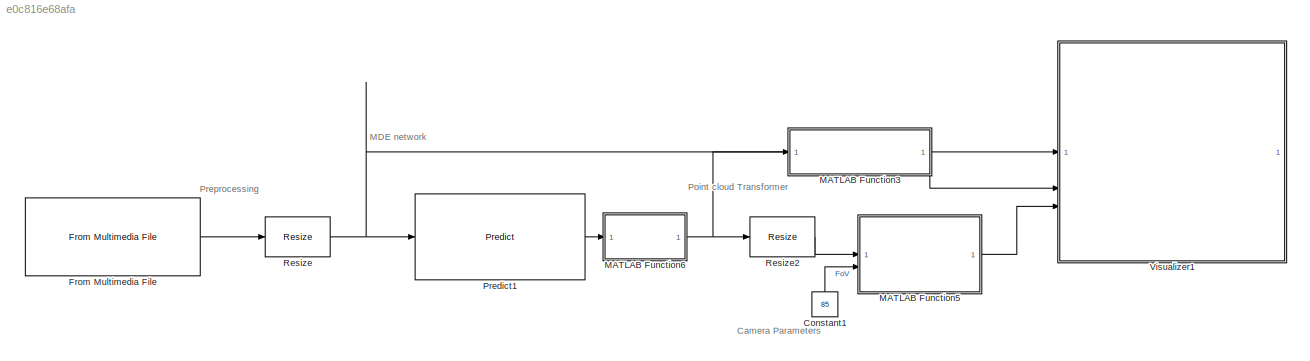
MODEL slx_e0c816e68afa
KIND model
CONFIG AbsTol = auto
CONFIG EnableMultiTasking = off
CONFIG FixedStep = auto
CONFIG MaxStep = auto
CONFIG MinStep = auto
CONFIG RelTol = 1e-3
CONFIG SampleTimeConstraint = Unconstrained
CONFIG SolverName = VariableStepAuto
CONFIG StartTime = 0.0
CONFIG StopTime = 600
BLOCK [Constant] Constant1
  NameLocation = left
  Value = 85
  VectorParams1D = off
BLOCK [Reference] From Multimedia File  REF=dspvision/From Multimedia File
  LibrarySourceBlock = visionsources/From Multimedia File
  SourceBlock = dspvision/From Multimedia File
  SourceType = From Multimedia File
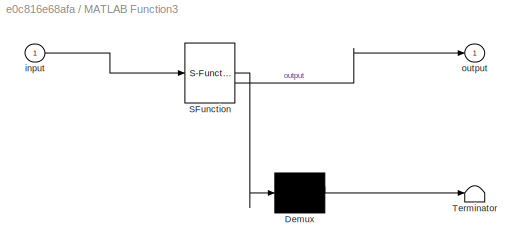
BLOCK [SubSystem] MATLAB Function3
  ErrorFcn = Stateflow.Translate.translate
  PermitHierarchicalResolution = ExplicitOnly
  SFBlockType = MATLAB Function
  TreatAsAtomicUnit = on
BLOCK [Demux] MATLAB Function3/ Demux 
  Outputs = 1
BLOCK [S-Function] MATLAB Function3/ SFunction 
  EnableBusSupport = on
  FunctionName = sf_sfun
  PortCounts = [1 2]
  SFcnIsStateOwnerBlock = off
  SFunctionDeploymentMode = off
  Tag = Stateflow S-Function 5
BLOCK [Terminator] MATLAB Function3/ Terminator 
BLOCK [Inport] MATLAB Function3/input
BLOCK [Outport] MATLAB Function3/output
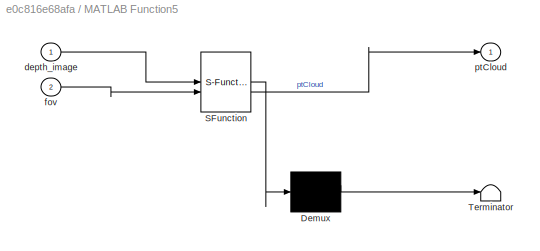
BLOCK [SubSystem] MATLAB Function5
  ErrorFcn = Stateflow.Translate.translate
  PermitHierarchicalResolution = ExplicitOnly
  SFBlockType = MATLAB Function
  TreatAsAtomicUnit = on
BLOCK [Demux] MATLAB Function5/ Demux 
  Outputs = 1
BLOCK [S-Function] MATLAB Function5/ SFunction 
  EnableBusSupport = on
  FunctionName = sf_sfun
  PortCounts = [2 2]
  SFcnIsStateOwnerBlock = off
  SFunctionDeploymentMode = off
  Tag = Stateflow S-Function 6
BLOCK [Terminator] MATLAB Function5/ Terminator 
BLOCK [Inport] MATLAB Function5/depth_image
BLOCK [Inport] MATLAB Function5/fov
  Port = 2
BLOCK [Outport] MATLAB Function5/ptCloud
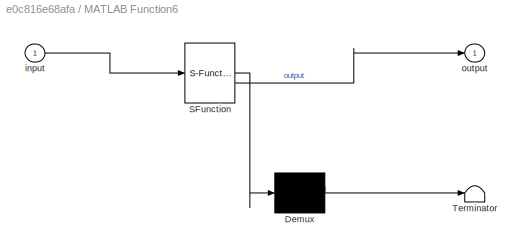
BLOCK [SubSystem] MATLAB Function6
  ErrorFcn = Stateflow.Translate.translate
  PermitHierarchicalResolution = ExplicitOnly
  SFBlockType = MATLAB Function
  TreatAsAtomicUnit = on
BLOCK [Demux] MATLAB Function6/ Demux 
  Outputs = 1
BLOCK [S-Function] MATLAB Function6/ SFunction 
  EnableBusSupport = on
  FunctionName = sf_sfun
  PortCounts = [1 2]
  SFcnIsStateOwnerBlock = off
  SFunctionDeploymentMode = off
  Tag = Stateflow S-Function 7
BLOCK [Terminator] MATLAB Function6/ Terminator 
BLOCK [Inport] MATLAB Function6/input
BLOCK [Outport] MATLAB Function6/output
BLOCK [Reference] Predict1  REF=deeplib/Predict
  SourceBlock = deeplib/Predict
  SourceType = Predict
BLOCK [Reference] Resize  REF=visiongeotforms/Resize
  SourceBlock = visiongeotforms/Resize
  SourceType = Resize
BLOCK [Reference] Resize2  REF=visiongeotforms/Resize
  SourceBlock = visiongeotforms/Resize
  SourceType = Resize
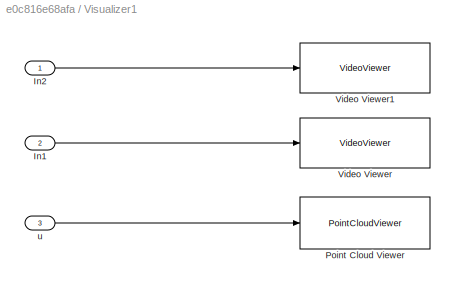
BLOCK [SubSystem] Visualizer1
  NameLocation = top
BLOCK [Inport] Visualizer1/In1
  Port = 2
BLOCK [Inport] Visualizer1/In2
BLOCK [PointCloudViewer] Visualizer1/Point Cloud Viewer
  FigPos = [409.8 859.6 670.4 650.4]
  ScopeSpecificationString = vipscopes.PointCloudViewerScopeCfg('CurrentConfiguration', extmgr.ConfigurationSet(extmgr.Configuration('Core','General UI',true),extmgr.Configuration('Core','Source UI',true),extmgr.Configuration('Sources','WiredSimulink',true),extmgr.Configuration('Visuals','Point Cloud',true)),'Version','2023b','Position',[409.8 3.4 670.4 650.4],'WindowStyle','docked')
BLOCK [VideoViewer] Visualizer1/Video Viewer
  FigPos = [3.4 859.6 400.8 312]
  ScopeSpecificationString = vipscopes.VideoViewerScopeCfg('CurrentConfiguration', extmgr.ConfigurationSet(extmgr.Configuration('Core','General UI',true),extmgr.Configuration('Core','Source UI',true),extmgr.Configuration('Sources','WiredSimulink',true),extmgr.Configuration('Visuals','Video',true),extmgr.Configuration('Tools','Image Navigation Tools',true,'FitToView',true,'Magnification',1.43489583333333),extmgr.Configuration(...<+150ch>
  colormapValue = gray(256)
BLOCK [VideoViewer] Visualizer1/Video Viewer1
  FigPos = [3.4 521.2 400.8 312]
  ScopeSpecificationString = vipscopes.VideoViewerScopeCfg('CurrentConfiguration', extmgr.ConfigurationSet(extmgr.Configuration('Core','General UI',true),extmgr.Configuration('Core','Source UI',true),extmgr.Configuration('Sources','WiredSimulink',true),extmgr.Configuration('Visuals','Video',true),extmgr.Configuration('Tools','Image Navigation Tools',true,'FitToView',true),extmgr.Configuration('Tools','Image Tool',true),extmgr...<+119ch>
  colormapValue = gray(256)
BLOCK [Inport] Visualizer1/u
  Port = 3
ANNOTATION (root): Camera Parameters
ANNOTATION (root): MDE network
ANNOTATION (root): Point cloud Transformer
ANNOTATION (root): Preprocessing
LINE Constant1:1 -> MATLAB Function5:2
LINE From Multimedia File:1 -> Resize:1
LINE MATLAB Function3:1 -> Visualizer1:2
LINE MATLAB Function5:1 -> Visualizer1:3
NET MATLAB Function6:1 -> MATLAB Function3:1, Resize2:1
LINE Predict1:1 -> MATLAB Function6:1
LINE Resize2:1 -> MATLAB Function5:1
NET Resize:1 -> Predict1:1, Visualizer1:1
LINE Visualizer1/In1:1 -> Visualizer1/Video Viewer:1
LINE Visualizer1/In2:1 -> Visualizer1/Video Viewer1:1
LINE Visualizer1/u:1 -> Visualizer1/Point Cloud Viewer:1
note: NET lines group one-source signal fan-out (src -> all destinations, sorted); 1:1 wires keep LINE
CHART MATLAB Function3 states=1 transitions=1
  STATE_LABEL 'eML_blk_kernel()'
  STATE_LABEL 'SCRIPT:\nfunction output = depthColor(input)\n\noutput = zeros([384 384 3]);\n\ncolor_map = jet(256);\nn_max = max(input(:));\nn_min = min(input(:));\n\ndepth_data_colored = ind2rgb(uint8(256*(input - n_min)/(n_max - n_min)), color_map);\noutput = depth_data_colored;\nend\n\n'
CHART MATLAB Function5 states=1 transitions=1
  STATE_LABEL 'eML_blk_kernel()'
  STATE_LABEL 'SCRIPT:\nfunction ptCloud = depth2ptCloud(depth_image, fov)\n%fov, depth, resolution\n\npixels = 640*480; % from Resolution\ncrop = 10;\nmin_distance = 1;\nmax_distance = 6;   \n\ncnt = 1;\npnt_pol = zeros([pixels,3]);\n%이미지 사이즈가 정해지면 mask 형식으로 간단하게 계산하는 방법도 고려해보기\nfor i=1+crop:480-crop %세로\n    for j=1+crop:640-crop %가로\n        distance = depth_image(i,j);\n\n        %% 기준각 pi/4\n        angle_vert = -((2 * (i -...<+582ch>'
CHART MATLAB Function6 states=1 transitions=1
  STATE_LABEL 'eML_blk_kernel()'
  STATE_LABEL 'SCRIPT:\nfunction output = scaler(input)\n\np = [0 -0.0024 8.2238];\ntemp = p(2)*input + p(3);\noutput = 0.4838*temp + 3.129;\n\nend\n\n'
CHART  states=0 transitions=0
CHART  states=0 transitions=0
CHART  states=0 transitions=0
